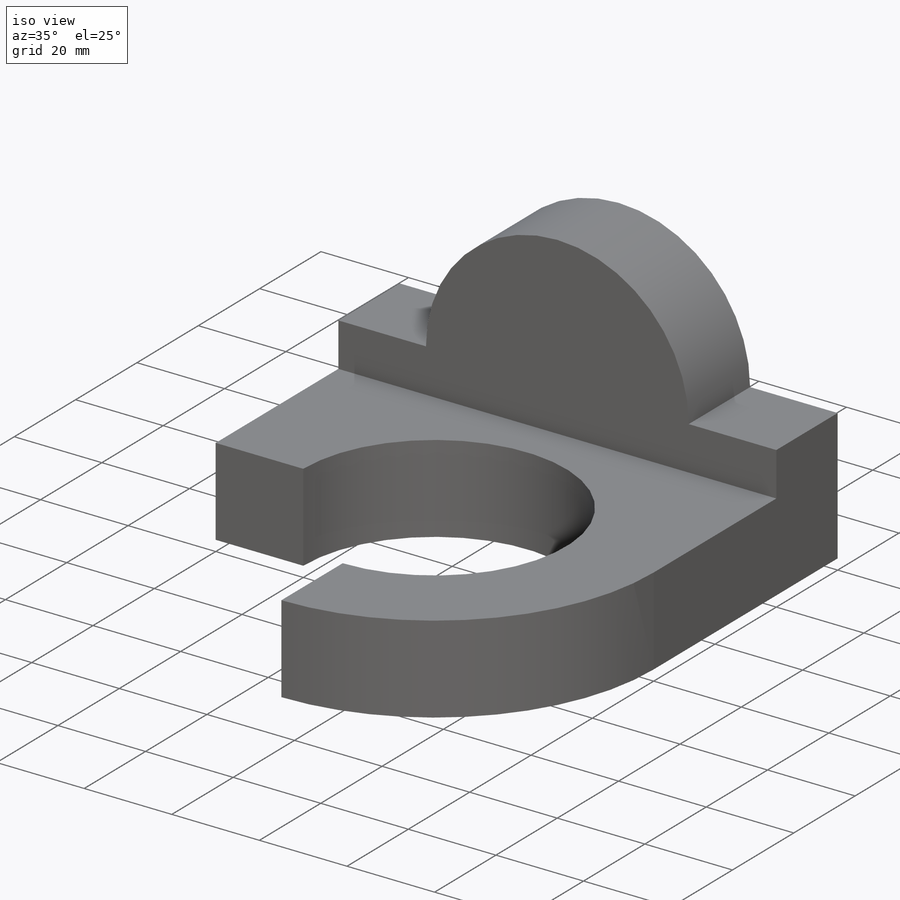
[diagram: iso view]
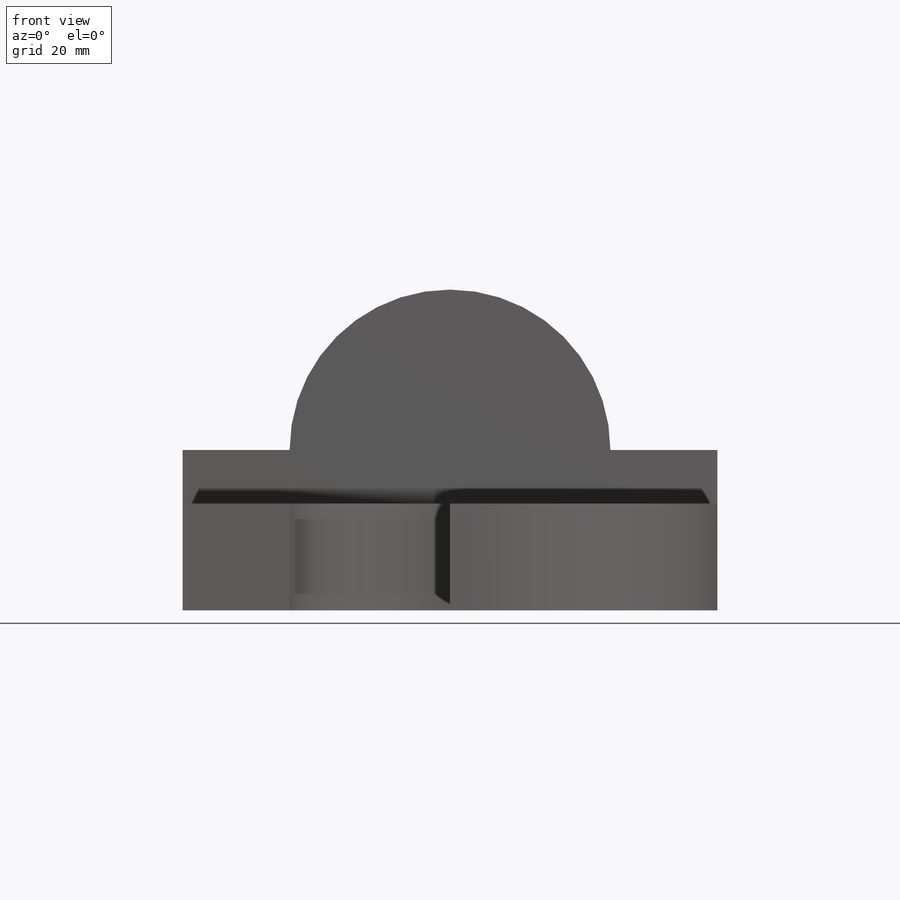
[diagram: front view]
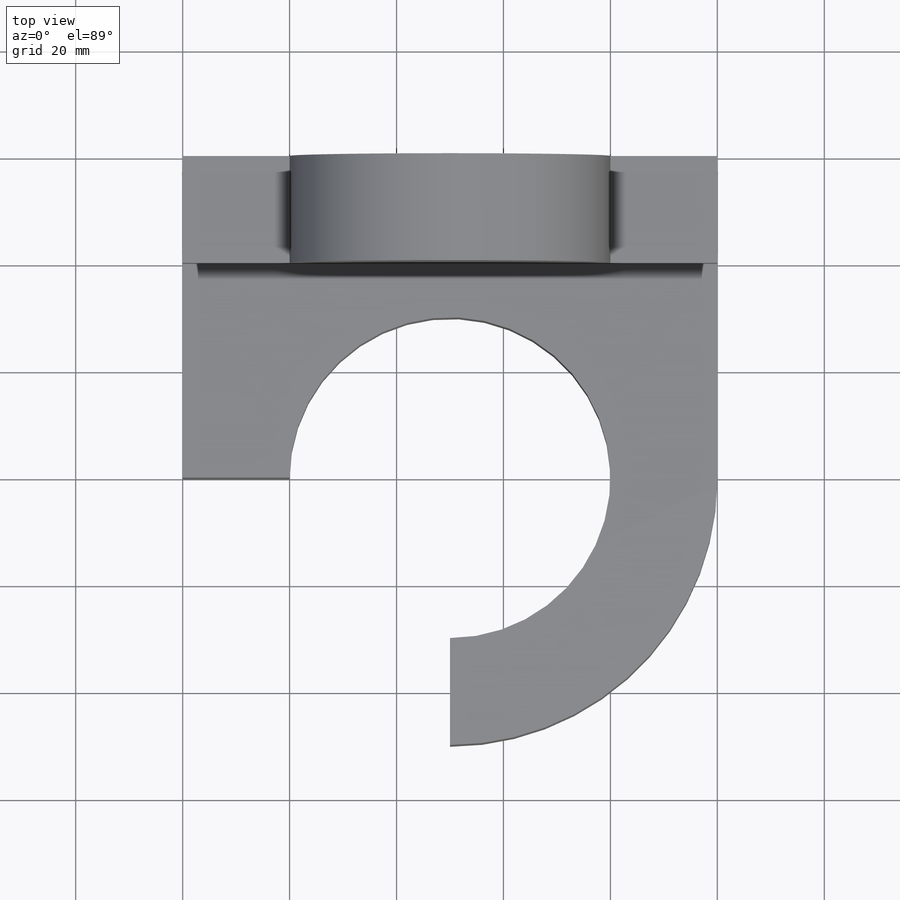
[diagram: top view]
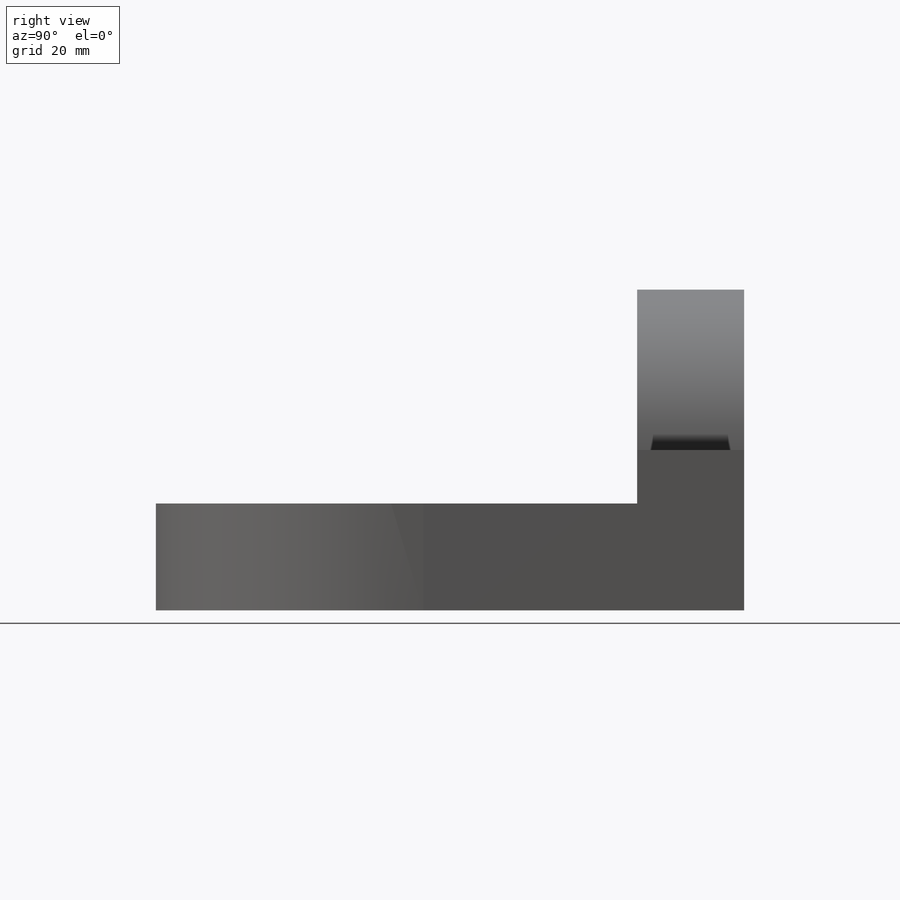
[diagram: right view]
SOLIDWORKS PART (.sldprt)
format: sldprt  version: not decoded by parser v0  size: 188,928 bytes
history: native  units: mm
features: sketch x6, cut_extrude x4, extrude x2, material x1 (+13 scaffold rows collapsed)
feature tree (26):
  scaffold x13  (default folders/planes/origin — collapsed)
  material  "Material <not specified>"
  sketch  "Sketch1"  dims[D1=30.0mm D2=100.0mm]
  extrude  "Boss-Extrude1"  Depth=110mm
  sketch  "Sketch2"  dims[D1=10.0mm D2=20.0mm]
  cut_extrude  "Cut-Extrude1"  Depth=110mm
  sketch  "Sketch3"  dims[D1=30.0mm]
  extrude  "Boss-Extrude2"  Depth=20mm
  sketch  "Sketch4"  dims[D1=50.0mm D2=40.0mm D3=50.0mm D4=50.0mm D5=50.0mm]
  cut_extrude  "Cut-Extrude2"  Depth=20mm
  sketch  "Sketch5"  dims[D1=50.0mm D2=50.0mm]
  cut_extrude  "Cut-Extrude3"  Depth=20mm
  sketch  "Sketch6"  dims[D1=20.0mm]
  cut_extrude  "Cut-Extrude4"  Depth=20mm
decode coverage: 12 of 12 modeling features carry decoded parameters
note: suppression state not decoded; provenance and decode notes live in map.json
